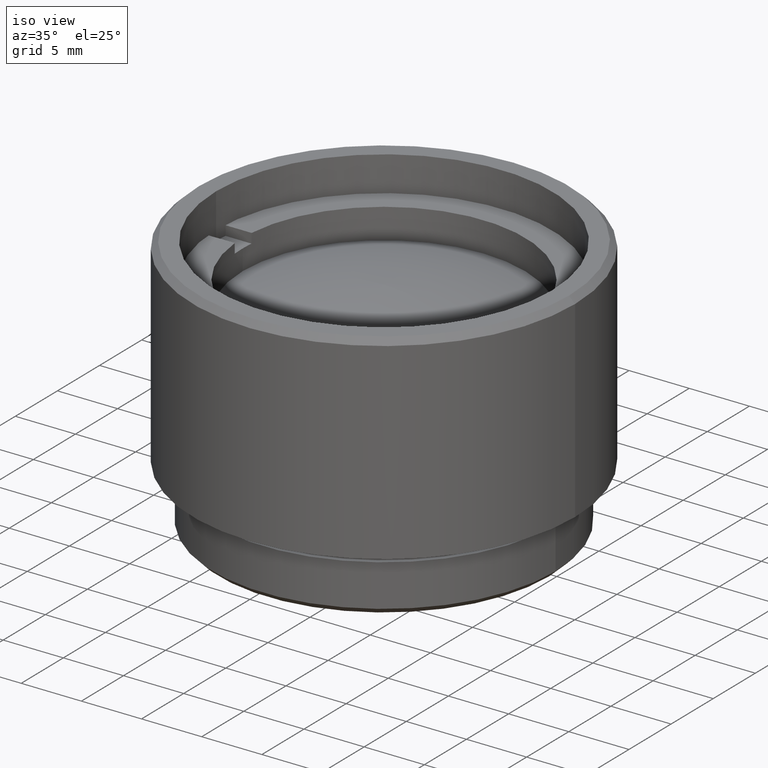
[diagram: clean part render]
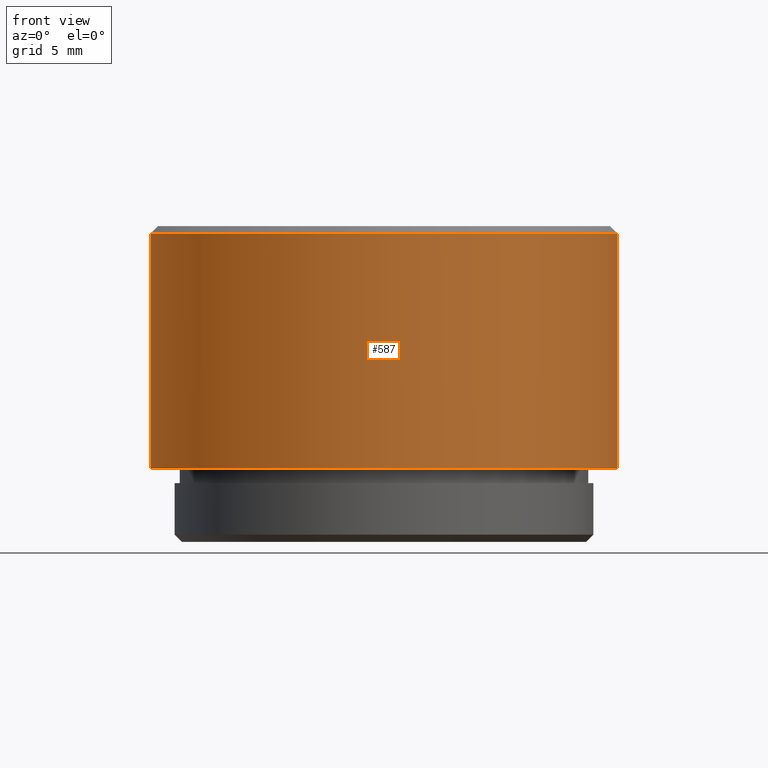
[diagram: tour spotlight — one face highlighted and labeled with its STEP entity id]
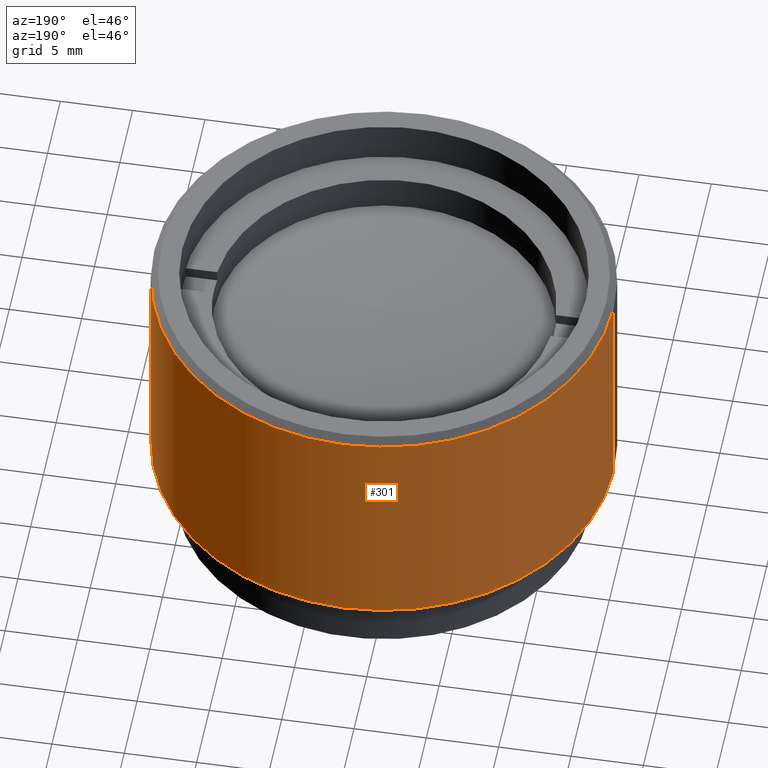
[diagram: tour spotlight — one face highlighted and labeled with its STEP entity id]
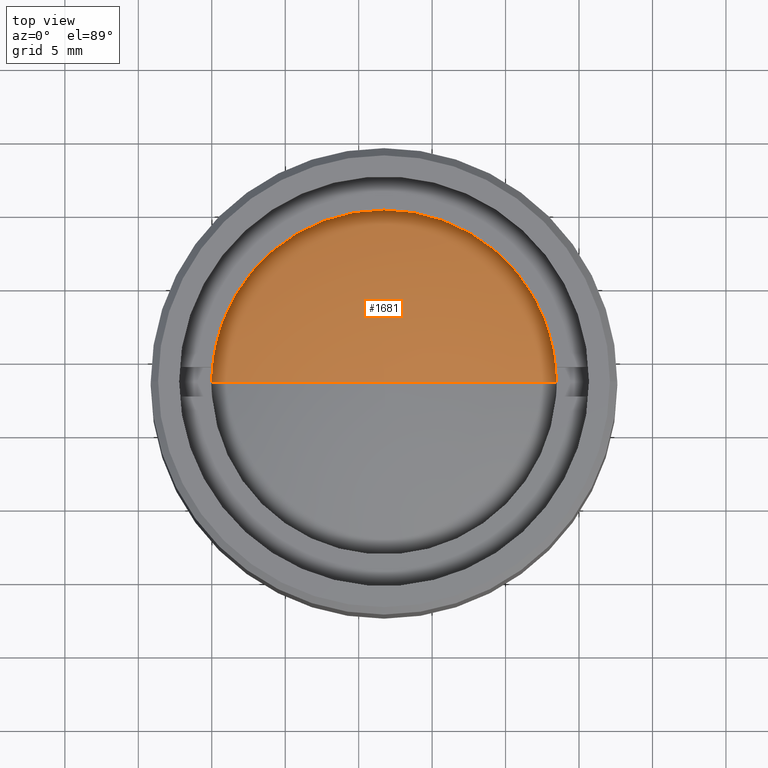
[diagram: tour spotlight — one face highlighted and labeled with its STEP entity id]
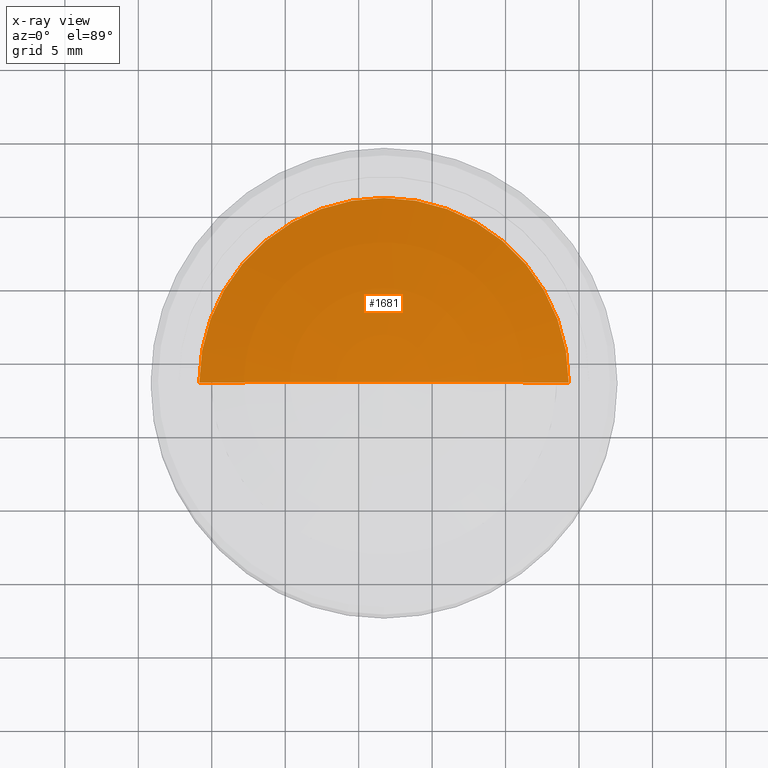
[diagram: x-ray of the same camera — body ghosted, this tour face saturated]
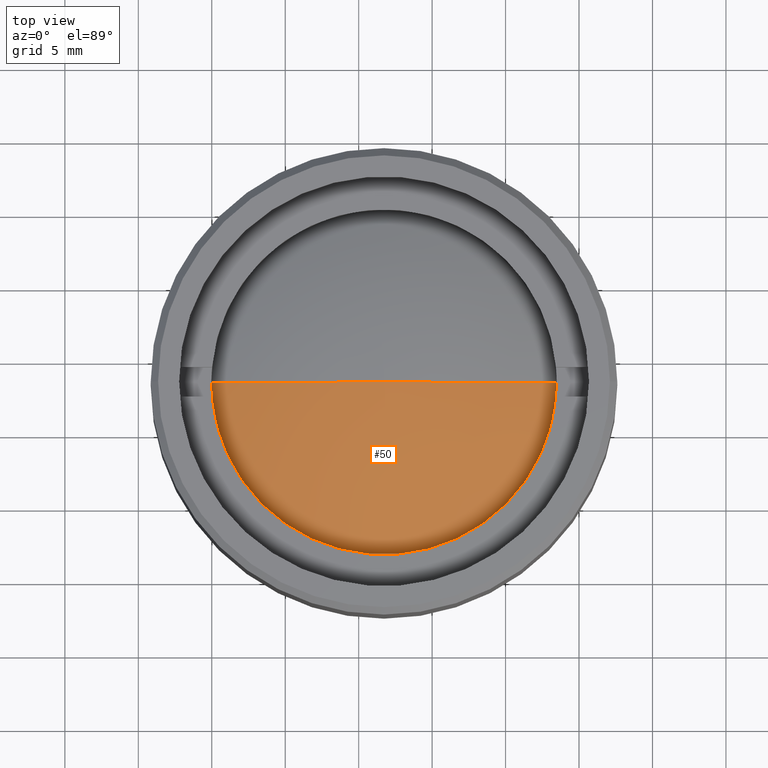
[diagram: tour spotlight — one face highlighted and labeled with its STEP entity id]
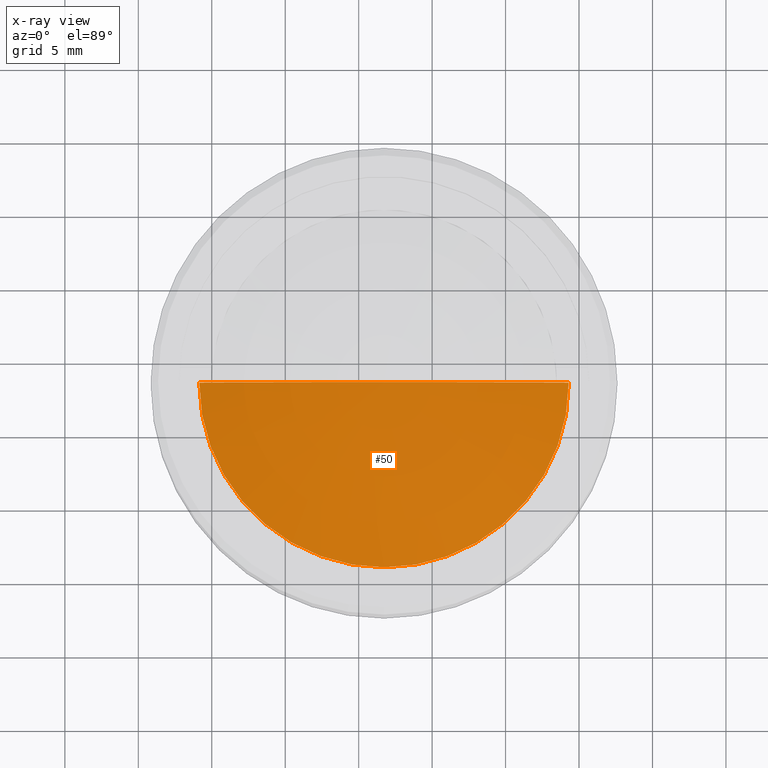
[diagram: x-ray of the same camera — body ghosted, this tour face saturated]
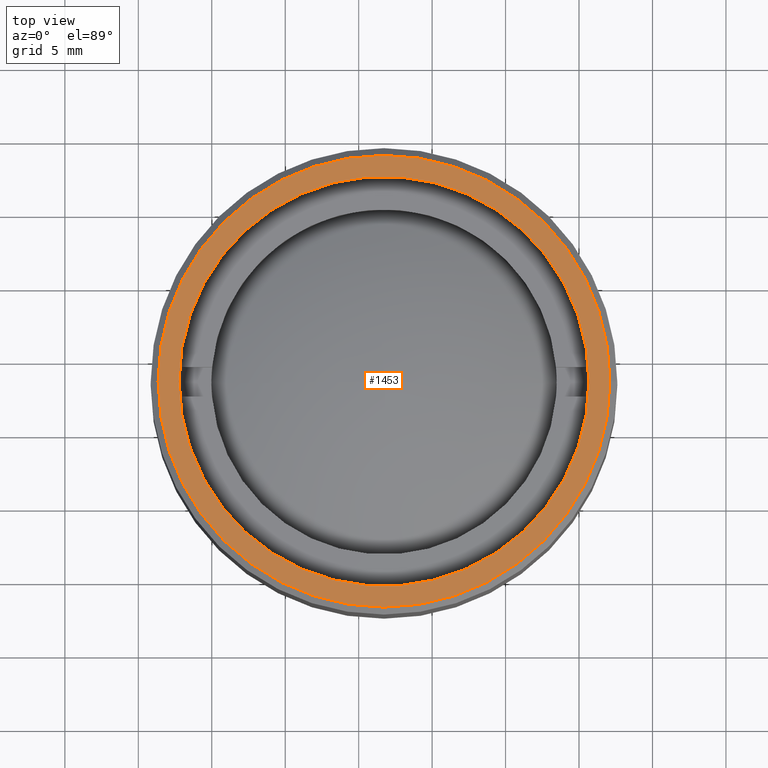
[diagram: tour spotlight — one face highlighted and labeled with its STEP entity id]
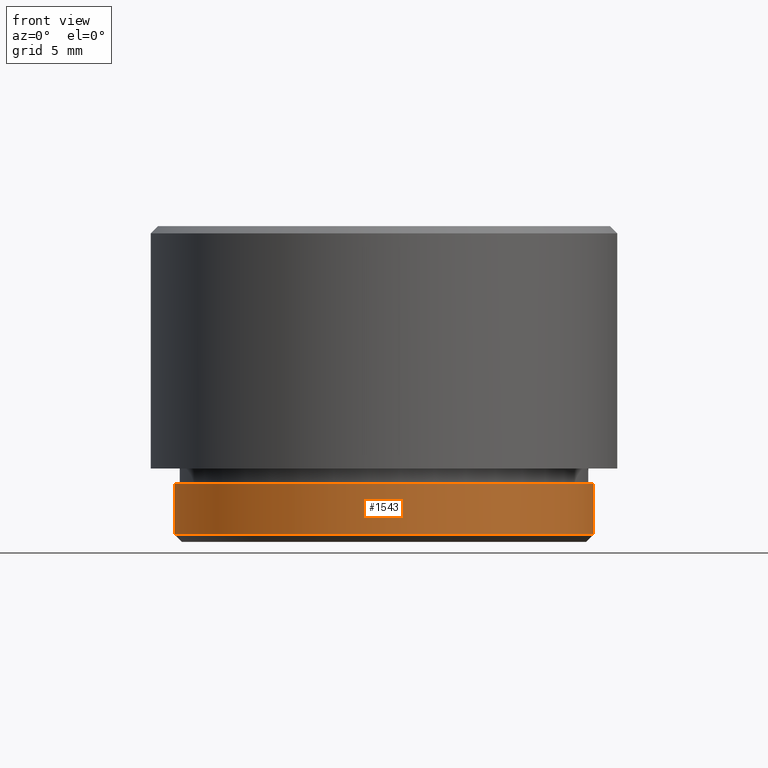
[diagram: tour spotlight — one face highlighted and labeled with its STEP entity id]
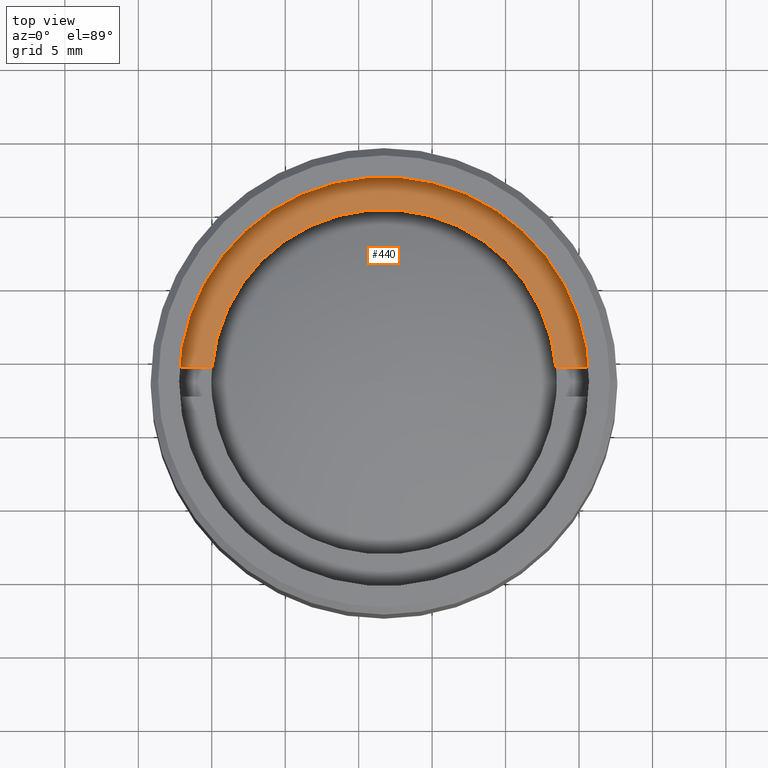
[diagram: tour spotlight — one face highlighted and labeled with its STEP entity id]
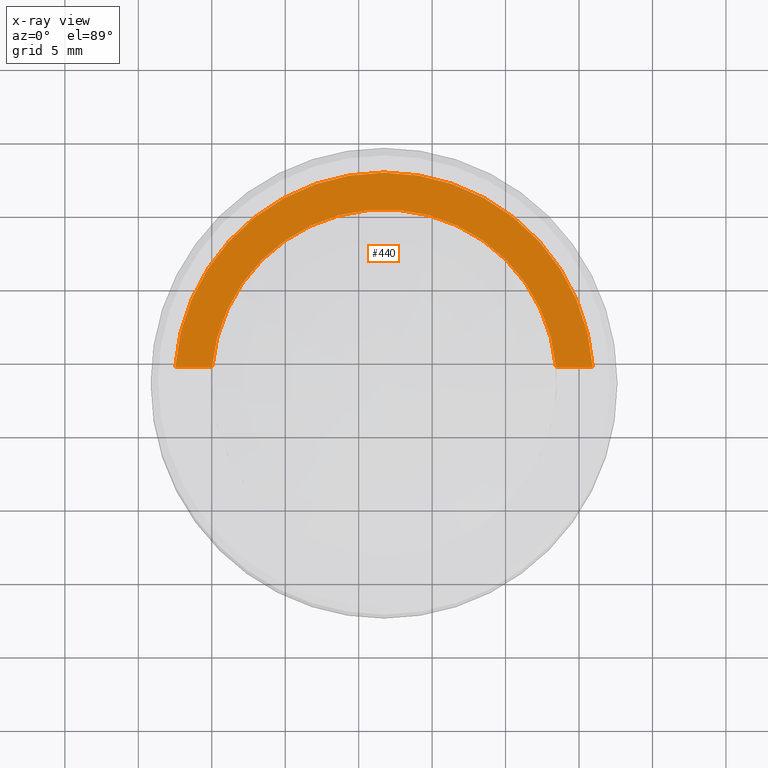
[diagram: x-ray of the same camera — body ghosted, this tour face saturated]
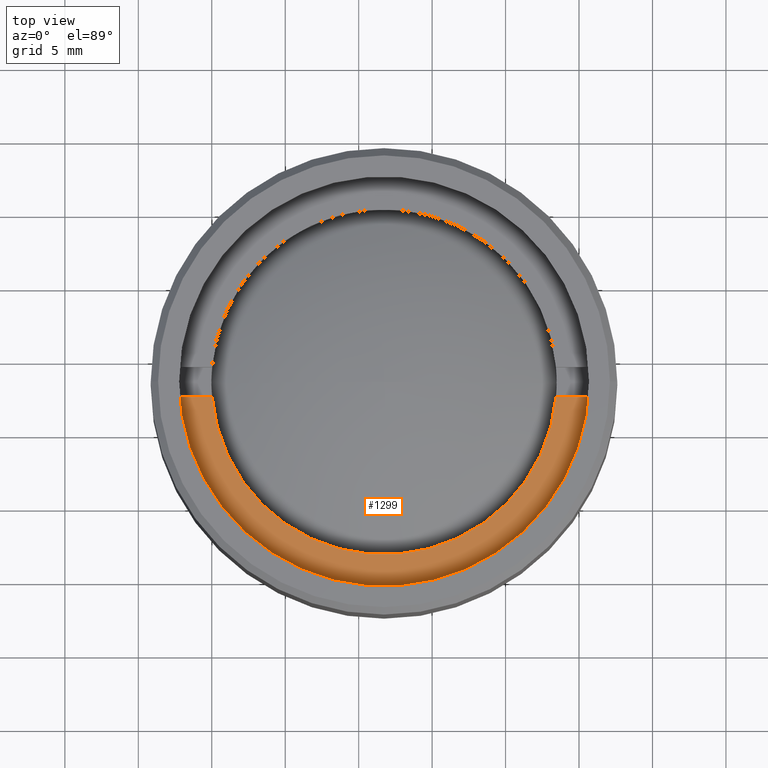
[diagram: tour spotlight — one face highlighted and labeled with its STEP entity id]
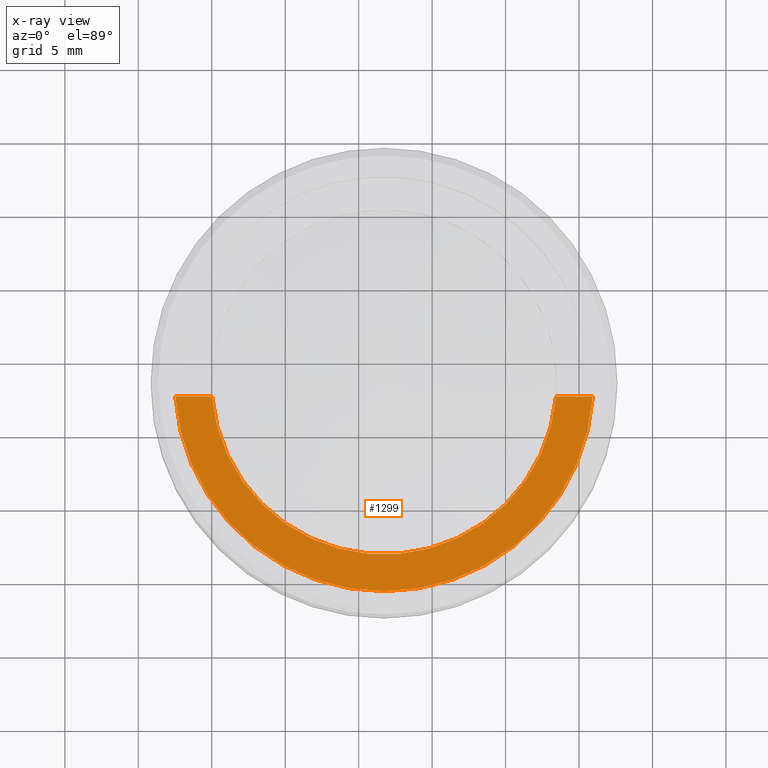
[diagram: x-ray of the same camera — body ghosted, this tour face saturated]
A machine part: a face-by-face anatomy tour. The part has 56 B-rep faces; the first image is the clean iso view, then the 8 largest visible faces are spotlighted one at a time (largest first), each with its STEP entity span.

Face 1 — front view, entity #587. In plain terms, the highlighted cylindrical surface (partial cylindrical patch) has radius 15.878 mm, axis along (-0, -0, -1).
Definition (entity closure, byte-faithful):
#103 = FACE_OUTER_BOUND ( 'NONE', #541, .T. ) ;
#143 = VERTEX_POINT ( 'NONE', #419 ) ;
#233 = DIRECTION ( 'NONE',  ( -1.000000000000000000, 0.000000000000000000, 0.000000000000000000 ) ) ;
#272 = ORIENTED_EDGE ( 'NONE', *, *, #1083, .T. ) ;
#322 = CARTESIAN_POINT ( 'NONE',  ( 15.87800000000000011, 1.944494187686167431E-15, 5.000000000000000000 ) ) ;
#384 = DIRECTION ( 'NONE',  ( 1.000000000000000000, 0.000000000000000000, 0.000000000000000000 ) ) ;
#411 = ORIENTED_EDGE ( 'NONE', *, *, #1399, .T. ) ;
#419 = CARTESIAN_POINT ( 'NONE',  ( 15.87800000000000011, 1.944494187686167431E-15, 20.99999999999999289 ) ) ;
#472 = LINE ( 'NONE', #1487, #1251 ) ;
#481 = DIRECTION ( 'NONE',  ( 0.000000000000000000, 0.000000000000000000, -1.000000000000000000 ) ) ;
#514 = EDGE_CURVE ( 'NONE', #1221, #1580, #1597, .T. ) ;
#535 = CARTESIAN_POINT ( 'NONE',  ( -15.87800000000000011, 0.000000000000000000, 21.50000000000000000 ) ) ;
#541 = EDGE_LOOP ( 'NONE', ( #734, #411, #272, #975 ) ) ;
#587 = ADVANCED_FACE ( 'NONE', ( #103 ), #1273, .T. ) ;
#617 = VECTOR ( 'NONE', #675, 1000.000000000000000 ) ;
#675 = DIRECTION ( 'NONE',  ( -0.000000000000000000, -0.000000000000000000, -1.000000000000000000 ) ) ;
#734 = ORIENTED_EDGE ( 'NONE', *, *, #812, .F. ) ;
#812 = EDGE_CURVE ( 'NONE', #143, #1221, #472, .T. ) ;
#846 = DIRECTION ( 'NONE',  ( -0.000000000000000000, -0.000000000000000000, -1.000000000000000000 ) ) ;
#858 = AXIS2_PLACEMENT_3D ( 'NONE', #1542, #1658, #233 ) ;
#908 = AXIS2_PLACEMENT_3D ( 'NONE', #1651, #481, #1134 ) ;
#939 = CARTESIAN_POINT ( 'NONE',  ( -15.87800000000000011, 0.000000000000000000, 5.000000000000000000 ) ) ;
#975 = ORIENTED_EDGE ( 'NONE', *, *, #514, .F. ) ;
#984 = VERTEX_POINT ( 'NONE', #1087 ) ;
#1014 = AXIS2_PLACEMENT_3D ( 'NONE', #1148, #1677, #384 ) ;
#1083 = EDGE_CURVE ( 'NONE', #984, #1580, #1463, .T. ) ;
#1087 = CARTESIAN_POINT ( 'NONE',  ( -15.87800000000000011, 0.000000000000000000, 20.99999999999999289 ) ) ;
#1134 = DIRECTION ( 'NONE',  ( -1.000000000000000000, 0.000000000000000000, 0.000000000000000000 ) ) ;
#1148 = CARTESIAN_POINT ( 'NONE',  ( 0.000000000000000000, 0.000000000000000000, 20.99999999999999289 ) ) ;
#1221 = VERTEX_POINT ( 'NONE', #322 ) ;
#1251 = VECTOR ( 'NONE', #846, 1000.000000000000000 ) ;
#1273 = CYLINDRICAL_SURFACE ( 'NONE', #858, 15.87800000000000011 ) ;
#1307 = CIRCLE ( 'NONE', #1014, 15.87800000000000011 ) ;
#1399 = EDGE_CURVE ( 'NONE', #143, #984, #1307, .T. ) ;
#1463 = LINE ( 'NONE', #535, #617 ) ;
#1487 = CARTESIAN_POINT ( 'NONE',  ( 15.87800000000000011, 1.944494187686167431E-15, 21.50000000000000000 ) ) ;
#1542 = CARTESIAN_POINT ( 'NONE',  ( 0.000000000000000000, 0.000000000000000000, 21.50000000000000000 ) ) ;
#1580 = VERTEX_POINT ( 'NONE', #939 ) ;
#1597 = CIRCLE ( 'NONE', #908, 15.87800000000000011 ) ;
#1651 = CARTESIAN_POINT ( 'NONE',  ( 0.000000000000000000, 0.000000000000000000, 5.000000000000000000 ) ) ;
#1658 = DIRECTION ( 'NONE',  ( -0.000000000000000000, -0.000000000000000000, -1.000000000000000000 ) ) ;
#1677 = DIRECTION ( 'NONE',  ( 0.000000000000000000, 0.000000000000000000, -1.000000000000000000 ) ) ;

Face 2 — auxiliary view, entity #301. In plain terms, the highlighted cylindrical surface (partial cylindrical patch) has radius 15.878 mm, axis along (-0, -0, -1).
Definition (entity closure, byte-faithful):
#131 = CARTESIAN_POINT ( 'NONE',  ( 0.000000000000000000, 0.000000000000000000, 5.000000000000000000 ) ) ;
#143 = VERTEX_POINT ( 'NONE', #419 ) ;
#210 = DIRECTION ( 'NONE',  ( -0.000000000000000000, -0.000000000000000000, -1.000000000000000000 ) ) ;
#265 = EDGE_LOOP ( 'NONE', ( #1322, #741, #934, #1304 ) ) ;
#301 = ADVANCED_FACE ( 'NONE', ( #1385 ), #987, .T. ) ;
#322 = CARTESIAN_POINT ( 'NONE',  ( 15.87800000000000011, 1.944494187686167431E-15, 5.000000000000000000 ) ) ;
#387 = DIRECTION ( 'NONE',  ( 0.000000000000000000, 0.000000000000000000, -1.000000000000000000 ) ) ;
#419 = CARTESIAN_POINT ( 'NONE',  ( 15.87800000000000011, 1.944494187686167431E-15, 20.99999999999999289 ) ) ;
#424 = DIRECTION ( 'NONE',  ( 0.000000000000000000, 0.000000000000000000, -1.000000000000000000 ) ) ;
#472 = LINE ( 'NONE', #1487, #1251 ) ;
#535 = CARTESIAN_POINT ( 'NONE',  ( -15.87800000000000011, 0.000000000000000000, 21.50000000000000000 ) ) ;
#617 = VECTOR ( 'NONE', #675, 1000.000000000000000 ) ;
#639 = AXIS2_PLACEMENT_3D ( 'NONE', #728, #210, #743 ) ;
#669 = DIRECTION ( 'NONE',  ( -1.000000000000000000, 0.000000000000000000, 0.000000000000000000 ) ) ;
#675 = DIRECTION ( 'NONE',  ( -0.000000000000000000, -0.000000000000000000, -1.000000000000000000 ) ) ;
#728 = CARTESIAN_POINT ( 'NONE',  ( 0.000000000000000000, 0.000000000000000000, 21.50000000000000000 ) ) ;
#741 = ORIENTED_EDGE ( 'NONE', *, *, #812, .T. ) ;
#743 = DIRECTION ( 'NONE',  ( -1.000000000000000000, 0.000000000000000000, 0.000000000000000000 ) ) ;
#799 = CARTESIAN_POINT ( 'NONE',  ( 0.000000000000000000, 0.000000000000000000, 20.99999999999999289 ) ) ;
#812 = EDGE_CURVE ( 'NONE', #143, #1221, #472, .T. ) ;
#846 = DIRECTION ( 'NONE',  ( -0.000000000000000000, -0.000000000000000000, -1.000000000000000000 ) ) ;
#934 = ORIENTED_EDGE ( 'NONE', *, *, #1470, .F. ) ;
#939 = CARTESIAN_POINT ( 'NONE',  ( -15.87800000000000011, 0.000000000000000000, 5.000000000000000000 ) ) ;
#984 = VERTEX_POINT ( 'NONE', #1087 ) ;
#987 = CYLINDRICAL_SURFACE ( 'NONE', #639, 15.87800000000000011 ) ;
#1003 = CIRCLE ( 'NONE', #1129, 15.87800000000000011 ) ;
#1083 = EDGE_CURVE ( 'NONE', #984, #1580, #1463, .T. ) ;
#1087 = CARTESIAN_POINT ( 'NONE',  ( -15.87800000000000011, 0.000000000000000000, 20.99999999999999289 ) ) ;
#1114 = EDGE_CURVE ( 'NONE', #984, #143, #1003, .T. ) ;
#1129 = AXIS2_PLACEMENT_3D ( 'NONE', #799, #387, #1315 ) ;
#1193 = AXIS2_PLACEMENT_3D ( 'NONE', #131, #424, #669 ) ;
#1221 = VERTEX_POINT ( 'NONE', #322 ) ;
#1251 = VECTOR ( 'NONE', #846, 1000.000000000000000 ) ;
#1304 = ORIENTED_EDGE ( 'NONE', *, *, #1083, .F. ) ;
#1315 = DIRECTION ( 'NONE',  ( 1.000000000000000000, 0.000000000000000000, 0.000000000000000000 ) ) ;
#1322 = ORIENTED_EDGE ( 'NONE', *, *, #1114, .T. ) ;
#1385 = FACE_OUTER_BOUND ( 'NONE', #265, .T. ) ;
#1463 = LINE ( 'NONE', #535, #617 ) ;
#1470 = EDGE_CURVE ( 'NONE', #1580, #1221, #1535, .T. ) ;
#1487 = CARTESIAN_POINT ( 'NONE',  ( 15.87800000000000011, 1.944494187686167431E-15, 21.50000000000000000 ) ) ;
#1535 = CIRCLE ( 'NONE', #1193, 15.87800000000000011 ) ;
#1580 = VERTEX_POINT ( 'NONE', #939 ) ;

Face 3 — top view, entity #1681. An x-ray twin of the same camera follows (body ghosted, this face saturated) — the face is partly hidden behind the body. In plain terms, the highlighted spherical surface has radius 33.3 mm.
Definition (entity closure, byte-faithful):
#31 = CIRCLE ( 'NONE', #808, 33.30000000000000426 ) ;
#58 = FACE_OUTER_BOUND ( 'NONE', #968, .T. ) ;
#83 = DIRECTION ( 'NONE',  ( 3.448609432722659710E-17, 0.000000000000000000, 1.000000000000000000 ) ) ;
#221 = DIRECTION ( 'NONE',  ( -1.000000000000000000, 0.000000000000000000, 3.448609432722662791E-17 ) ) ;
#277 = CARTESIAN_POINT ( 'NONE',  ( 0.000000000000000000, 0.000000000000000000, -33.30000000000000426 ) ) ;
#297 = AXIS2_PLACEMENT_3D ( 'NONE', #1229, #1218, #845 ) ;
#323 = SPHERICAL_SURFACE ( 'NONE', #297, 33.30000000000000426 ) ;
#328 = EDGE_CURVE ( 'NONE', #917, #597, #1484, .T. ) ;
#474 = ORIENTED_EDGE ( 'NONE', *, *, #328, .T. ) ;
#597 = VERTEX_POINT ( 'NONE', #767 ) ;
#667 = DIRECTION ( 'NONE',  ( 0.000000000000000000, -1.000000000000000000, 0.000000000000000000 ) ) ;
#671 = ORIENTED_EDGE ( 'NONE', *, *, #1033, .F. ) ;
#767 = CARTESIAN_POINT ( 'NONE',  ( -12.57552870090633945, 0.000000000000000000, -2.465829378874464961 ) ) ;
#808 = AXIS2_PLACEMENT_3D ( 'NONE', #277, #667, #1439 ) ;
#845 = DIRECTION ( 'NONE',  ( -1.000000000000000000, 0.000000000000000000, 0.000000000000000000 ) ) ;
#917 = VERTEX_POINT ( 'NONE', #1372 ) ;
#968 = EDGE_LOOP ( 'NONE', ( #671, #474 ) ) ;
#1033 = EDGE_CURVE ( 'NONE', #917, #597, #31, .T. ) ;
#1218 = DIRECTION ( 'NONE',  ( 0.000000000000000000, -0.000000000000000000, 1.000000000000000000 ) ) ;
#1229 = CARTESIAN_POINT ( 'NONE',  ( 0.000000000000000000, 0.000000000000000000, -33.30000000000000426 ) ) ;
#1341 = AXIS2_PLACEMENT_3D ( 'NONE', #1394, #83, #221 ) ;
#1372 = CARTESIAN_POINT ( 'NONE',  ( 12.57552870090633945, 1.547679766016099959E-15, -2.465829378874464961 ) ) ;
#1394 = CARTESIAN_POINT ( 'NONE',  ( 8.391326301227739821E-16, 0.000000000000000000, -2.465829378874464961 ) ) ;
#1439 = DIRECTION ( 'NONE',  ( 0.000000000000000000, 0.000000000000000000, -1.000000000000000000 ) ) ;
#1484 = CIRCLE ( 'NONE', #1341, 12.57552870090633945 ) ;
#1681 = ADVANCED_FACE ( 'NONE', ( #58 ), #323, .T. ) ;

Face 4 — top view, entity #50. An x-ray twin of the same camera follows (body ghosted, this face saturated) — the face is partly hidden behind the body. In plain terms, the highlighted spherical surface has radius 33.3 mm.
Definition (entity closure, byte-faithful):
#31 = CIRCLE ( 'NONE', #808, 33.30000000000000426 ) ;
#50 = ADVANCED_FACE ( 'NONE', ( #344 ), #872, .T. ) ;
#250 = DIRECTION ( 'NONE',  ( -1.000000000000000000, 0.000000000000000000, 3.448609432722662791E-17 ) ) ;
#277 = CARTESIAN_POINT ( 'NONE',  ( 0.000000000000000000, 0.000000000000000000, -33.30000000000000426 ) ) ;
#306 = ORIENTED_EDGE ( 'NONE', *, *, #642, .T. ) ;
#344 = FACE_OUTER_BOUND ( 'NONE', #1447, .T. ) ;
#427 = AXIS2_PLACEMENT_3D ( 'NONE', #482, #1525, #1121 ) ;
#482 = CARTESIAN_POINT ( 'NONE',  ( 0.000000000000000000, 0.000000000000000000, -33.30000000000000426 ) ) ;
#597 = VERTEX_POINT ( 'NONE', #767 ) ;
#642 = EDGE_CURVE ( 'NONE', #597, #917, #966, .T. ) ;
#667 = DIRECTION ( 'NONE',  ( 0.000000000000000000, -1.000000000000000000, 0.000000000000000000 ) ) ;
#716 = ORIENTED_EDGE ( 'NONE', *, *, #1033, .T. ) ;
#767 = CARTESIAN_POINT ( 'NONE',  ( -12.57552870090633945, 0.000000000000000000, -2.465829378874464961 ) ) ;
#789 = DIRECTION ( 'NONE',  ( 3.448609432722659710E-17, 0.000000000000000000, 1.000000000000000000 ) ) ;
#808 = AXIS2_PLACEMENT_3D ( 'NONE', #277, #667, #1439 ) ;
#872 = SPHERICAL_SURFACE ( 'NONE', #427, 33.30000000000000426 ) ;
#917 = VERTEX_POINT ( 'NONE', #1372 ) ;
#966 = CIRCLE ( 'NONE', #1482, 12.57552870090633945 ) ;
#1033 = EDGE_CURVE ( 'NONE', #917, #597, #31, .T. ) ;
#1121 = DIRECTION ( 'NONE',  ( -1.000000000000000000, 0.000000000000000000, 0.000000000000000000 ) ) ;
#1372 = CARTESIAN_POINT ( 'NONE',  ( 12.57552870090633945, 1.547679766016099959E-15, -2.465829378874464961 ) ) ;
#1439 = DIRECTION ( 'NONE',  ( 0.000000000000000000, 0.000000000000000000, -1.000000000000000000 ) ) ;
#1447 = EDGE_LOOP ( 'NONE', ( #306, #716 ) ) ;
#1482 = AXIS2_PLACEMENT_3D ( 'NONE', #1567, #789, #250 ) ;
#1525 = DIRECTION ( 'NONE',  ( 0.000000000000000000, -0.000000000000000000, 1.000000000000000000 ) ) ;
#1567 = CARTESIAN_POINT ( 'NONE',  ( 8.391326301227739821E-16, 0.000000000000000000, -2.465829378874464961 ) ) ;

Face 5 — top view, entity #1453. In plain terms, the highlighted planar face has unit normal (0, 0, 1).
Definition (entity closure, byte-faithful):
#20 = ORIENTED_EDGE ( 'NONE', *, *, #851, .T. ) ;
#59 = EDGE_CURVE ( 'NONE', #1627, #993, #141, .T. ) ;
#76 = AXIS2_PLACEMENT_3D ( 'NONE', #237, #778, #1416 ) ;
#96 = CIRCLE ( 'NONE', #1331, 13.94999999999999929 ) ;
#107 = VERTEX_POINT ( 'NONE', #564 ) ;
#141 = CIRCLE ( 'NONE', #892, 13.94999999999999929 ) ;
#237 = CARTESIAN_POINT ( 'NONE',  ( 0.000000000000000000, 0.000000000000000000, 21.50000000000000000 ) ) ;
#281 = EDGE_LOOP ( 'NONE', ( #1375, #1697 ) ) ;
#324 = DIRECTION ( 'NONE',  ( 0.000000000000000000, 0.000000000000000000, 1.000000000000000000 ) ) ;
#393 = CARTESIAN_POINT ( 'NONE',  ( 0.000000000000000000, 0.000000000000000000, 21.50000000000000000 ) ) ;
#437 = AXIS2_PLACEMENT_3D ( 'NONE', #965, #324, #1609 ) ;
#463 = CARTESIAN_POINT ( 'NONE',  ( 0.000000000000000000, 0.000000000000000000, 21.50000000000000000 ) ) ;
#464 = EDGE_CURVE ( 'NONE', #881, #107, #527, .T. ) ;
#521 = CIRCLE ( 'NONE', #437, 15.37800000000000900 ) ;
#527 = CIRCLE ( 'NONE', #76, 15.37800000000000900 ) ;
#531 = EDGE_LOOP ( 'NONE', ( #20, #1043 ) ) ;
#564 = CARTESIAN_POINT ( 'NONE',  ( -15.37800000000000900, 0.000000000000000000, 21.50000000000000000 ) ) ;
#580 = CARTESIAN_POINT ( 'NONE',  ( -13.94999999999999929, 1.708382284810557368E-15, 21.50000000000000000 ) ) ;
#712 = DIRECTION ( 'NONE',  ( 1.000000000000000000, 0.000000000000000000, 0.000000000000000000 ) ) ;
#778 = DIRECTION ( 'NONE',  ( 0.000000000000000000, 0.000000000000000000, 1.000000000000000000 ) ) ;
#779 = PLANE ( 'NONE',  #1689 ) ;
#826 = CARTESIAN_POINT ( 'NONE',  ( 15.37800000000000900, 1.913878017707484038E-15, 21.50000000000000000 ) ) ;
#851 = EDGE_CURVE ( 'NONE', #107, #881, #521, .T. ) ;
#881 = VERTEX_POINT ( 'NONE', #826 ) ;
#892 = AXIS2_PLACEMENT_3D ( 'NONE', #463, #1002, #983 ) ;
#916 = DIRECTION ( 'NONE',  ( 0.000000000000000000, 0.000000000000000000, 1.000000000000000000 ) ) ;
#965 = CARTESIAN_POINT ( 'NONE',  ( 0.000000000000000000, 0.000000000000000000, 21.50000000000000000 ) ) ;
#983 = DIRECTION ( 'NONE',  ( 1.000000000000000000, 0.000000000000000000, 0.000000000000000000 ) ) ;
#993 = VERTEX_POINT ( 'NONE', #1575 ) ;
#1002 = DIRECTION ( 'NONE',  ( 0.000000000000000000, 0.000000000000000000, 1.000000000000000000 ) ) ;
#1043 = ORIENTED_EDGE ( 'NONE', *, *, #464, .T. ) ;
#1223 = DIRECTION ( 'NONE',  ( 1.000000000000000000, 0.000000000000000000, -0.000000000000000000 ) ) ;
#1331 = AXIS2_PLACEMENT_3D ( 'NONE', #1370, #1512, #712 ) ;
#1370 = CARTESIAN_POINT ( 'NONE',  ( 0.000000000000000000, 0.000000000000000000, 21.50000000000000000 ) ) ;
#1375 = ORIENTED_EDGE ( 'NONE', *, *, #1663, .F. ) ;
#1416 = DIRECTION ( 'NONE',  ( 1.000000000000000000, 0.000000000000000000, 0.000000000000000000 ) ) ;
#1418 = FACE_BOUND ( 'NONE', #281, .T. ) ;
#1453 = ADVANCED_FACE ( 'NONE', ( #1571, #1418 ), #779, .T. ) ;
#1512 = DIRECTION ( 'NONE',  ( 0.000000000000000000, 0.000000000000000000, 1.000000000000000000 ) ) ;
#1571 = FACE_OUTER_BOUND ( 'NONE', #531, .T. ) ;
#1575 = CARTESIAN_POINT ( 'NONE',  ( 13.94999999999999929, 0.000000000000000000, 21.50000000000000000 ) ) ;
#1609 = DIRECTION ( 'NONE',  ( 1.000000000000000000, 0.000000000000000000, 0.000000000000000000 ) ) ;
#1627 = VERTEX_POINT ( 'NONE', #580 ) ;
#1663 = EDGE_CURVE ( 'NONE', #993, #1627, #96, .T. ) ;
#1689 = AXIS2_PLACEMENT_3D ( 'NONE', #393, #916, #1223 ) ;
#1697 = ORIENTED_EDGE ( 'NONE', *, *, #59, .F. ) ;

Face 6 — front view, entity #1543. In plain terms, the highlighted cylindrical surface (partial cylindrical patch) has radius 14.25 mm, axis along (-0, -0, -1).
Definition (entity closure, byte-faithful):
#15 = FACE_OUTER_BOUND ( 'NONE', #1355, .T. ) ;
#118 = VERTEX_POINT ( 'NONE', #138 ) ;
#137 = CARTESIAN_POINT ( 'NONE',  ( 0.000000000000000000, 0.000000000000000000, 5.000000000000000000 ) ) ;
#138 = CARTESIAN_POINT ( 'NONE',  ( 14.25000000000000000, 1.745121688784978228E-15, 4.000000000000000000 ) ) ;
#185 = CARTESIAN_POINT ( 'NONE',  ( -14.25000000000000000, 0.000000000000000000, 0.5000000000000038858 ) ) ;
#308 = CIRCLE ( 'NONE', #1259, 14.25000000000000000 ) ;
#351 = CARTESIAN_POINT ( 'NONE',  ( 14.25000000000000000, 1.745121688784978228E-15, 5.000000000000000000 ) ) ;
#371 = ORIENTED_EDGE ( 'NONE', *, *, #985, .T. ) ;
#418 = DIRECTION ( 'NONE',  ( -0.000000000000000000, -0.000000000000000000, -1.000000000000000000 ) ) ;
#430 = CARTESIAN_POINT ( 'NONE',  ( -14.25000000000000000, 0.000000000000000000, 4.000000000000000000 ) ) ;
#497 = DIRECTION ( 'NONE',  ( -0.000000000000000000, -0.000000000000000000, -1.000000000000000000 ) ) ;
#544 = DIRECTION ( 'NONE',  ( -0.000000000000000000, -0.000000000000000000, -1.000000000000000000 ) ) ;
#552 = DIRECTION ( 'NONE',  ( -1.000000000000000000, 0.000000000000000000, 0.000000000000000000 ) ) ;
#554 = CYLINDRICAL_SURFACE ( 'NONE', #875, 14.25000000000000000 ) ;
#556 = EDGE_CURVE ( 'NONE', #118, #565, #1524, .T. ) ;
#565 = VERTEX_POINT ( 'NONE', #1281 ) ;
#568 = EDGE_CURVE ( 'NONE', #1242, #565, #308, .T. ) ;
#677 = DIRECTION ( 'NONE',  ( -1.000000000000000000, 0.000000000000000000, 0.000000000000000000 ) ) ;
#684 = LINE ( 'NONE', #1593, #820 ) ;
#813 = CARTESIAN_POINT ( 'NONE',  ( 0.000000000000000000, 0.000000000000000000, 4.000000000000000000 ) ) ;
#820 = VECTOR ( 'NONE', #418, 1000.000000000000000 ) ;
#875 = AXIS2_PLACEMENT_3D ( 'NONE', #137, #544, #677 ) ;
#879 = DIRECTION ( 'NONE',  ( 1.000000000000000000, 0.000000000000000000, 0.000000000000000000 ) ) ;
#886 = DIRECTION ( 'NONE',  ( 0.000000000000000000, 0.000000000000000000, 1.000000000000000000 ) ) ;
#985 = EDGE_CURVE ( 'NONE', #118, #1574, #1184, .T. ) ;
#1049 = AXIS2_PLACEMENT_3D ( 'NONE', #813, #1686, #552 ) ;
#1068 = VECTOR ( 'NONE', #497, 1000.000000000000000 ) ;
#1082 = ORIENTED_EDGE ( 'NONE', *, *, #1564, .T. ) ;
#1178 = ORIENTED_EDGE ( 'NONE', *, *, #568, .T. ) ;
#1184 = CIRCLE ( 'NONE', #1049, 14.25000000000000000 ) ;
#1242 = VERTEX_POINT ( 'NONE', #185 ) ;
#1257 = CARTESIAN_POINT ( 'NONE',  ( 0.000000000000000000, 0.000000000000000000, 0.5000000000000038858 ) ) ;
#1259 = AXIS2_PLACEMENT_3D ( 'NONE', #1257, #886, #879 ) ;
#1281 = CARTESIAN_POINT ( 'NONE',  ( 14.25000000000000000, 1.745121688784978228E-15, 0.5000000000000038858 ) ) ;
#1283 = ORIENTED_EDGE ( 'NONE', *, *, #556, .F. ) ;
#1355 = EDGE_LOOP ( 'NONE', ( #1283, #371, #1082, #1178 ) ) ;
#1524 = LINE ( 'NONE', #351, #1068 ) ;
#1543 = ADVANCED_FACE ( 'NONE', ( #15 ), #554, .T. ) ;
#1564 = EDGE_CURVE ( 'NONE', #1574, #1242, #684, .T. ) ;
#1574 = VERTEX_POINT ( 'NONE', #430 ) ;
#1593 = CARTESIAN_POINT ( 'NONE',  ( -14.25000000000000000, 0.000000000000000000, 5.000000000000000000 ) ) ;
#1686 = DIRECTION ( 'NONE',  ( 0.000000000000000000, 0.000000000000000000, -1.000000000000000000 ) ) ;

Face 7 — top view, entity #440. An x-ray twin of the same camera follows (body ghosted, this face saturated) — the face is partly hidden behind the body. In plain terms, the highlighted planar face has unit normal (0, 0, 1).
Definition (entity closure, byte-faithful):
#39 = EDGE_LOOP ( 'NONE', ( #295, #465, #1036, #54 ) ) ;
#54 = ORIENTED_EDGE ( 'NONE', *, *, #1550, .F. ) ;
#67 = AXIS2_PLACEMENT_3D ( 'NONE', #1236, #971, #1493 ) ;
#109 = FACE_OUTER_BOUND ( 'NONE', #39, .T. ) ;
#184 = CARTESIAN_POINT ( 'NONE',  ( 11.70736947396809668, 1.000000000000000000, 2.500000000000000000 ) ) ;
#196 = AXIS2_PLACEMENT_3D ( 'NONE', #1426, #1034, #906 ) ;
#255 = VERTEX_POINT ( 'NONE', #184 ) ;
#295 = ORIENTED_EDGE ( 'NONE', *, *, #1151, .F. ) ;
#303 = CARTESIAN_POINT ( 'NONE',  ( 0.000000000000000000, 0.000000000000000000, 2.500000000000000000 ) ) ;
#331 = DIRECTION ( 'NONE',  ( -1.000000000000000000, -0.000000000000000000, -0.000000000000000000 ) ) ;
#381 = CIRCLE ( 'NONE', #67, 14.25000000000000000 ) ;
#440 = ADVANCED_FACE ( 'NONE', ( #109 ), #1683, .T. ) ;
#444 = VERTEX_POINT ( 'NONE', #644 ) ;
#465 = ORIENTED_EDGE ( 'NONE', *, *, #1612, .T. ) ;
#644 = CARTESIAN_POINT ( 'NONE',  ( -14.21486897582949993, 1.000000000000000000, 2.500000000000000000 ) ) ;
#694 = DIRECTION ( 'NONE',  ( -1.000000000000000000, -0.000000000000000000, -0.000000000000000000 ) ) ;
#700 = CARTESIAN_POINT ( 'NONE',  ( -30.62185530834360492, 1.000000000000000000, 2.500000000000000000 ) ) ;
#723 = LINE ( 'NONE', #1112, #1010 ) ;
#835 = CARTESIAN_POINT ( 'NONE',  ( 14.21486897582949993, 1.000000000000000000, 2.500000000000000000 ) ) ;
#906 = DIRECTION ( 'NONE',  ( 1.000000000000000000, 0.000000000000000000, -0.000000000000000000 ) ) ;
#932 = EDGE_CURVE ( 'NONE', #1265, #444, #723, .T. ) ;
#970 = LINE ( 'NONE', #700, #1577 ) ;
#971 = DIRECTION ( 'NONE',  ( 0.000000000000000000, 0.000000000000000000, 1.000000000000000000 ) ) ;
#1010 = VECTOR ( 'NONE', #694, 1000.000000000000000 ) ;
#1034 = DIRECTION ( 'NONE',  ( 0.000000000000000000, 0.000000000000000000, 1.000000000000000000 ) ) ;
#1036 = ORIENTED_EDGE ( 'NONE', *, *, #932, .F. ) ;
#1037 = AXIS2_PLACEMENT_3D ( 'NONE', #303, #1186, #1060 ) ;
#1060 = DIRECTION ( 'NONE',  ( 1.000000000000000000, 0.000000000000000000, 0.000000000000000000 ) ) ;
#1100 = CARTESIAN_POINT ( 'NONE',  ( -11.70736947396809668, 1.000000000000000000, 2.500000000000000000 ) ) ;
#1112 = CARTESIAN_POINT ( 'NONE',  ( -30.62185530834360492, 1.000000000000000000, 2.500000000000000000 ) ) ;
#1151 = EDGE_CURVE ( 'NONE', #1469, #255, #970, .T. ) ;
#1186 = DIRECTION ( 'NONE',  ( 0.000000000000000000, 0.000000000000000000, 1.000000000000000000 ) ) ;
#1236 = CARTESIAN_POINT ( 'NONE',  ( 0.000000000000000000, 0.000000000000000000, 2.500000000000000000 ) ) ;
#1265 = VERTEX_POINT ( 'NONE', #1100 ) ;
#1426 = CARTESIAN_POINT ( 'NONE',  ( 0.000000000000000000, 0.000000000000000000, 2.500000000000000000 ) ) ;
#1469 = VERTEX_POINT ( 'NONE', #835 ) ;
#1493 = DIRECTION ( 'NONE',  ( 1.000000000000000000, 0.000000000000000000, 0.000000000000000000 ) ) ;
#1550 = EDGE_CURVE ( 'NONE', #255, #1265, #1560, .T. ) ;
#1560 = CIRCLE ( 'NONE', #1037, 11.75000000000000178 ) ;
#1577 = VECTOR ( 'NONE', #331, 1000.000000000000000 ) ;
#1612 = EDGE_CURVE ( 'NONE', #1469, #444, #381, .T. ) ;
#1683 = PLANE ( 'NONE',  #196 ) ;

Face 8 — top view, entity #1299. An x-ray twin of the same camera follows (body ghosted, this face saturated) — the face is partly hidden behind the body. In plain terms, the highlighted planar face has unit normal (0, 0, 1).
Definition (entity closure, byte-faithful):
#13 = AXIS2_PLACEMENT_3D ( 'NONE', #509, #478, #772 ) ;
#38 = VERTEX_POINT ( 'NONE', #1248 ) ;
#45 = EDGE_LOOP ( 'NONE', ( #1195, #1098, #181, #575 ) ) ;
#136 = DIRECTION ( 'NONE',  ( 0.000000000000000000, 0.000000000000000000, 1.000000000000000000 ) ) ;
#165 = CARTESIAN_POINT ( 'NONE',  ( 14.21486897582949993, -1.000000000000000000, 2.500000000000000000 ) ) ;
#172 = AXIS2_PLACEMENT_3D ( 'NONE', #1175, #136, #1038 ) ;
#181 = ORIENTED_EDGE ( 'NONE', *, *, #487, .F. ) ;
#246 = CARTESIAN_POINT ( 'NONE',  ( -30.62185530834360492, -1.000000000000000000, 2.500000000000000000 ) ) ;
#310 = VECTOR ( 'NONE', #1028, 1000.000000000000000 ) ;
#354 = VERTEX_POINT ( 'NONE', #1226 ) ;
#357 = AXIS2_PLACEMENT_3D ( 'NONE', #1361, #989, #1624 ) ;
#410 = EDGE_CURVE ( 'NONE', #38, #935, #500, .T. ) ;
#478 = DIRECTION ( 'NONE',  ( 0.000000000000000000, 0.000000000000000000, 1.000000000000000000 ) ) ;
#487 = EDGE_CURVE ( 'NONE', #354, #1468, #785, .T. ) ;
#500 = LINE ( 'NONE', #1138, #310 ) ;
#509 = CARTESIAN_POINT ( 'NONE',  ( 0.000000000000000000, 0.000000000000000000, 2.500000000000000000 ) ) ;
#515 = DIRECTION ( 'NONE',  ( 1.000000000000000000, 0.000000000000000000, 0.000000000000000000 ) ) ;
#575 = ORIENTED_EDGE ( 'NONE', *, *, #1061, .F. ) ;
#758 = PLANE ( 'NONE',  #13 ) ;
#764 = FACE_OUTER_BOUND ( 'NONE', #45, .T. ) ;
#772 = DIRECTION ( 'NONE',  ( 1.000000000000000000, 0.000000000000000000, -0.000000000000000000 ) ) ;
#785 = LINE ( 'NONE', #246, #1398 ) ;
#935 = VERTEX_POINT ( 'NONE', #1096 ) ;
#945 = CIRCLE ( 'NONE', #172, 11.75000000000000178 ) ;
#989 = DIRECTION ( 'NONE',  ( 0.000000000000000000, 0.000000000000000000, 1.000000000000000000 ) ) ;
#1028 = DIRECTION ( 'NONE',  ( 1.000000000000000000, 0.000000000000000000, 0.000000000000000000 ) ) ;
#1038 = DIRECTION ( 'NONE',  ( 1.000000000000000000, 0.000000000000000000, 0.000000000000000000 ) ) ;
#1061 = EDGE_CURVE ( 'NONE', #935, #354, #945, .T. ) ;
#1096 = CARTESIAN_POINT ( 'NONE',  ( -11.70736947396809668, -1.000000000000000000, 2.500000000000000000 ) ) ;
#1098 = ORIENTED_EDGE ( 'NONE', *, *, #1622, .T. ) ;
#1138 = CARTESIAN_POINT ( 'NONE',  ( -30.62185530834360492, -1.000000000000000000, 2.500000000000000000 ) ) ;
#1175 = CARTESIAN_POINT ( 'NONE',  ( 0.000000000000000000, 0.000000000000000000, 2.500000000000000000 ) ) ;
#1195 = ORIENTED_EDGE ( 'NONE', *, *, #410, .F. ) ;
#1226 = CARTESIAN_POINT ( 'NONE',  ( 11.70736947396809668, -1.000000000000000000, 2.500000000000000000 ) ) ;
#1248 = CARTESIAN_POINT ( 'NONE',  ( -14.21486897582949993, -1.000000000000000000, 2.500000000000000000 ) ) ;
#1276 = CIRCLE ( 'NONE', #357, 14.25000000000000000 ) ;
#1299 = ADVANCED_FACE ( 'NONE', ( #764 ), #758, .T. ) ;
#1361 = CARTESIAN_POINT ( 'NONE',  ( 0.000000000000000000, 0.000000000000000000, 2.500000000000000000 ) ) ;
#1398 = VECTOR ( 'NONE', #515, 1000.000000000000000 ) ;
#1468 = VERTEX_POINT ( 'NONE', #165 ) ;
#1622 = EDGE_CURVE ( 'NONE', #38, #1468, #1276, .T. ) ;
#1624 = DIRECTION ( 'NONE',  ( 1.000000000000000000, 0.000000000000000000, 0.000000000000000000 ) ) ;